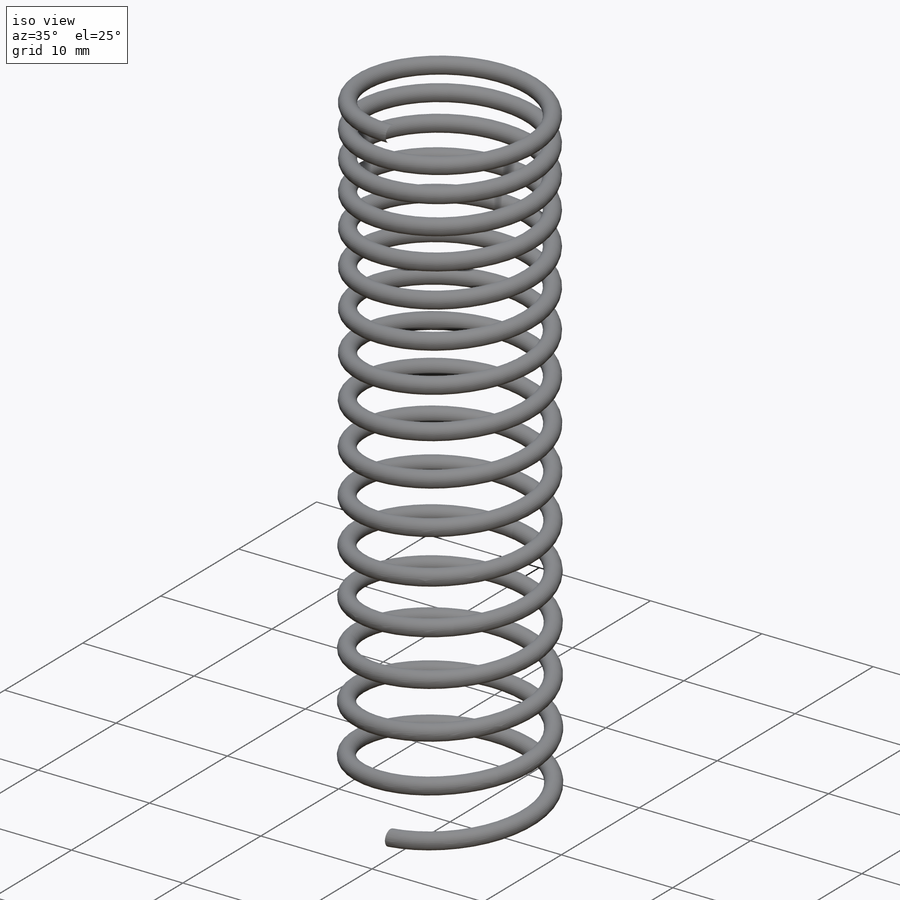
[diagram: iso view]
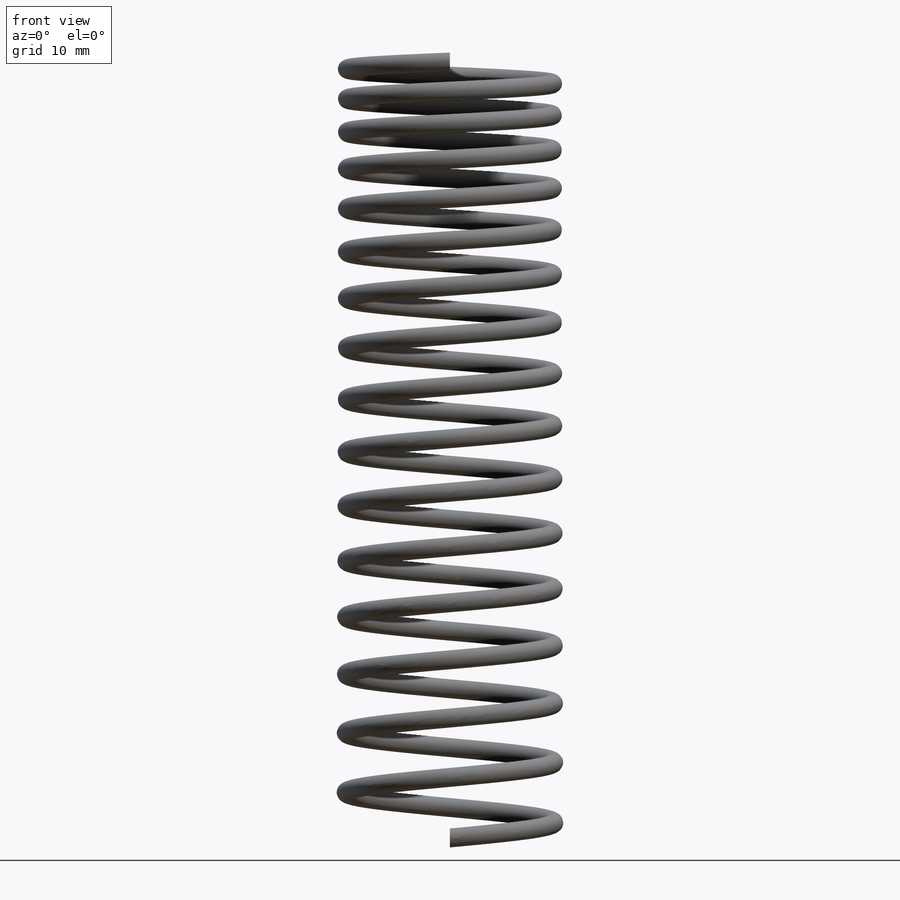
[diagram: front view]
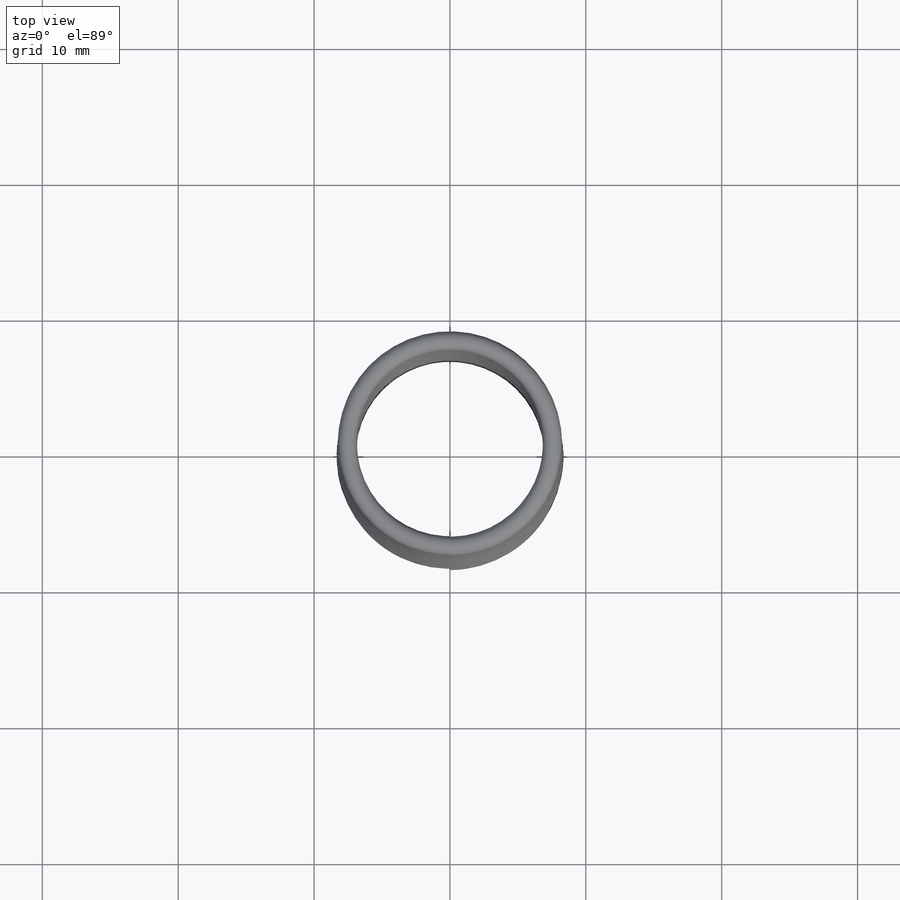
[diagram: top view]
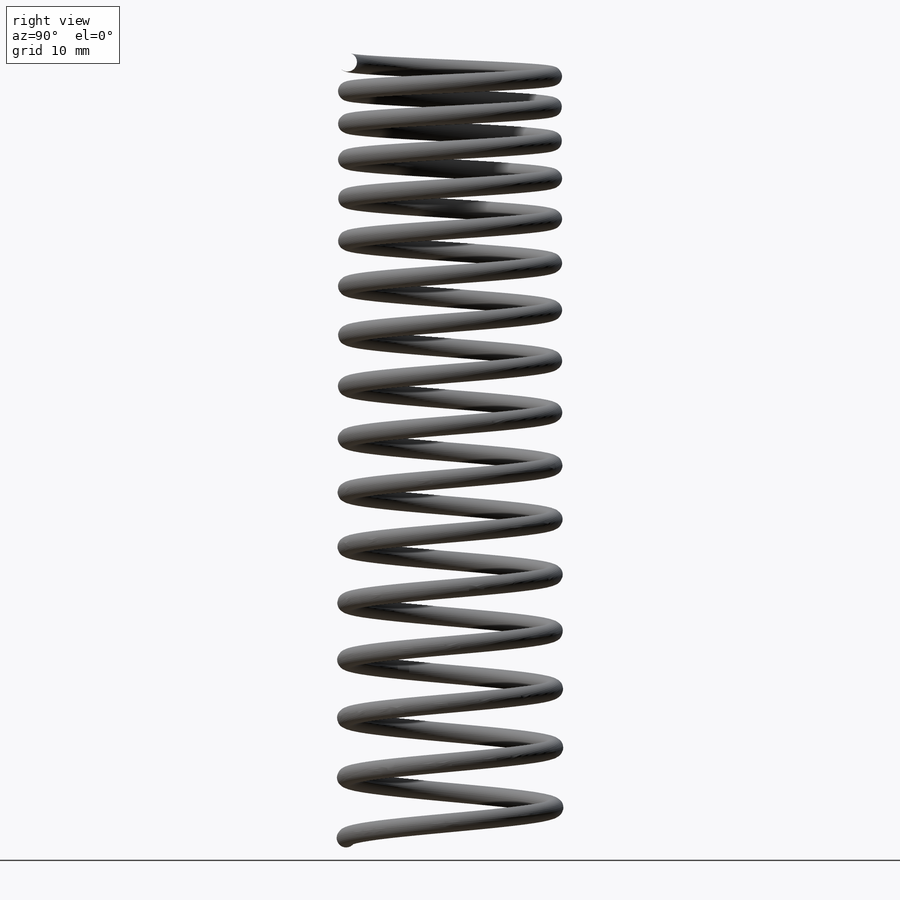
[diagram: right view]
SOLIDWORKS PART (.sldprt)
format: sldprt  version: not decoded by parser v0  size: 1,311,232 bytes
history: native  units: mm
features: sketch x8, sweep x3, material x1, helix x1, plane x1 (+13 scaffold rows collapsed)
feature tree (27):
  scaffold x13  (default folders/planes/origin — collapsed)
  material  "Plain Carbon Steel"
  sketch  "Sketch1"  dims[c1.D1=~49.226331mm c2.D1=13.9mm c2.D2=0.7mm]
  sketch  "Sketch2"
  helix  "Helix/Spiral3"  Pitch=37mm
  sketch  "Sketch3"  dims[D1=1.4mm]
  sweep  "Sweep1"
  sketch  "Sketch4"  dims[c1.D1=~3.389095mm c2.D1=~1448.623279mm c2.D2=14.9mm c3.D2=~4590.215933mm c4.D2=14.9mm c4.D1=~7.394469mm c5.D1=~4310.963252mm]
  sweep  "Sweep2"
  sketch  "Sketch3<3>"
  sketch  "Sketch5"  dims[D1=1.4mm D2=61.25mm]
  plane  "Plane2"  Offset=57.3mm
  sketch  "Sketch6"  dims[c1.D2=7.45mm c1.D1=6.25mm c2.D1=~506.145483mm c3.D1=~2.120569mm c4.D1=~2094.395102mm]
  sweep  "Sweep3"
  sketch  "Axis"  dims[D1=58.5mm]
decode coverage: 7 of 12 modeling features carry decoded parameters
note: ~ marks probable driven/reference dimensions
note: suppression state not decoded; provenance and decode notes live in map.json
